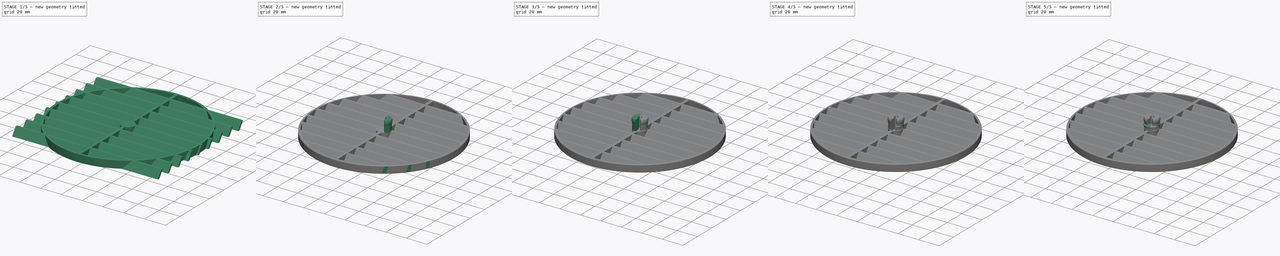
[diagram: build sequence overview — one tinted view per stage of 5, left to right]
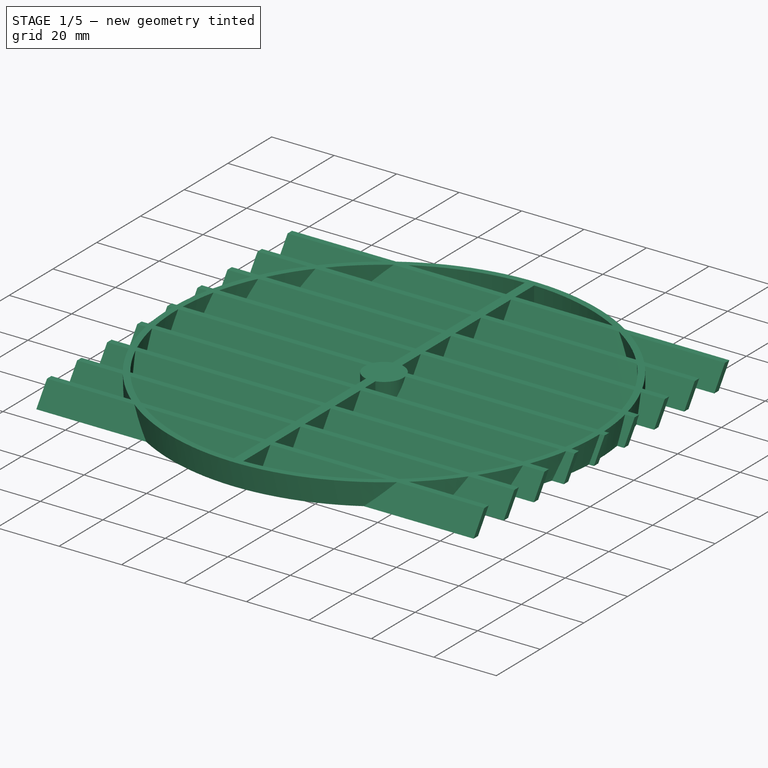
[diagram: stage 1 of 5 — iso view after this stage's code; geometry added in this stage tinted green]
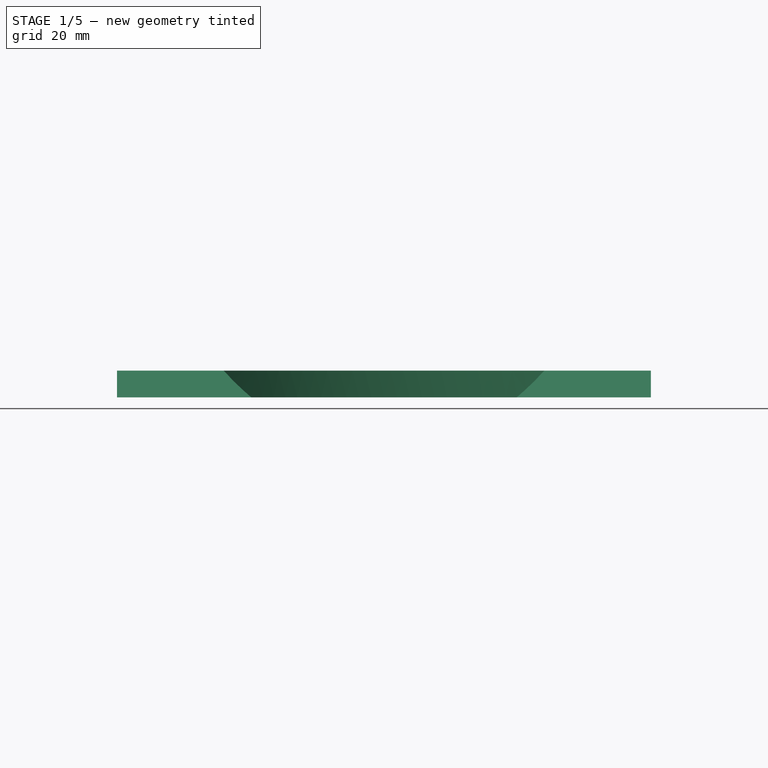
[diagram: stage 1 of 5 — front view after this stage's code; geometry added in this stage tinted green]
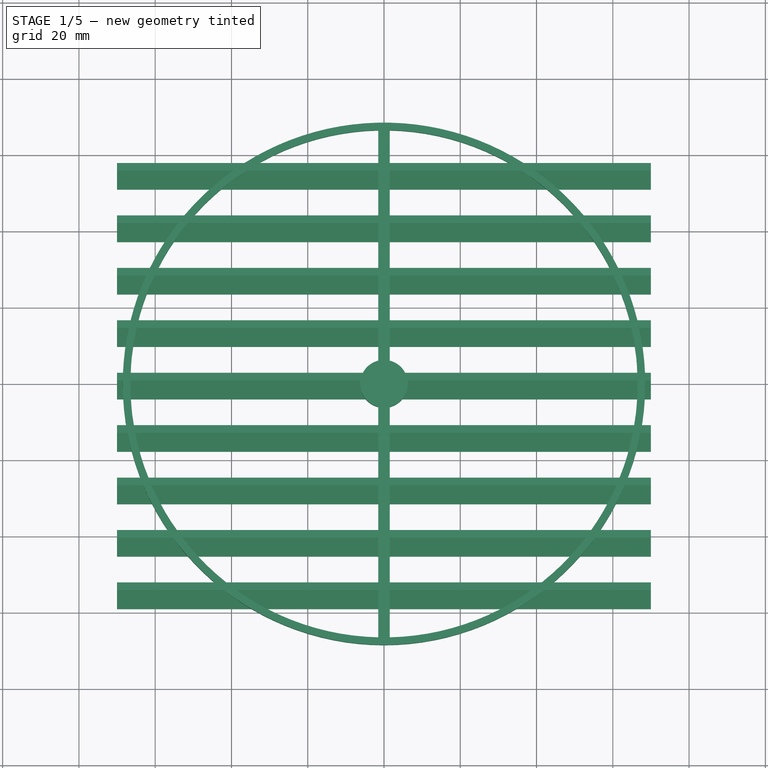
[diagram: stage 1 of 5 — top view after this stage's code; geometry added in this stage tinted green]
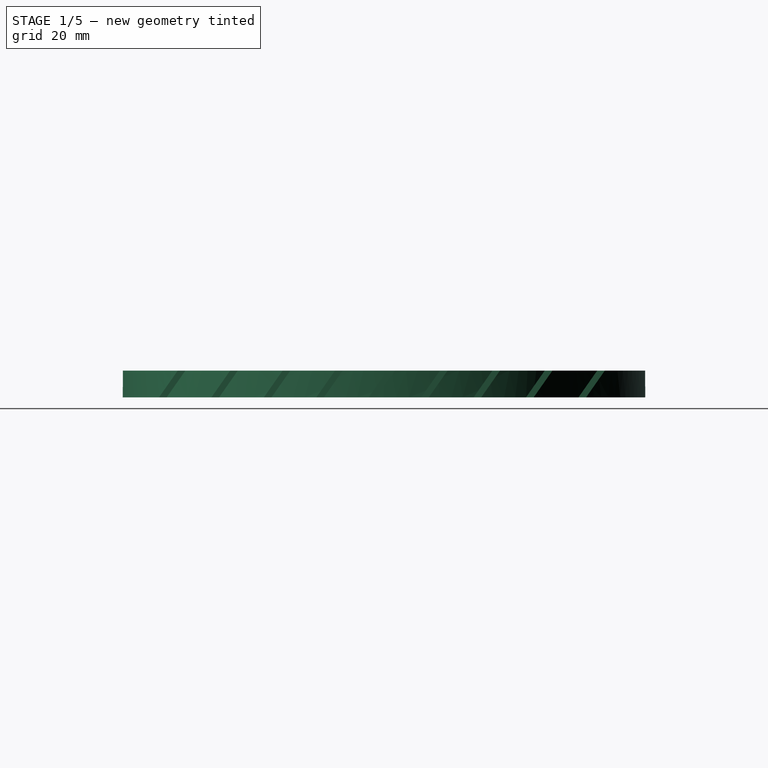
[diagram: stage 1 of 5 — right view after this stage's code; geometry added in this stage tinted green]
FCSTD DOCUMENT  (FreeCAD 0.20R29603 (Git))
Label: circular vent
License: All rights reserved
LicenseURL: http://en.wikipedia.org/wiki/All_rights_reserved
objects: Sketcher::SketchObject×11, PartDesign::Pad×5, PartDesign::Revolution×4, PartDesign::Body×4, PartDesign::PolarPattern×2, PartDesign::LinearPattern×1, PartDesign::Pocket×1, PartDesign::Mirrored×1, PartDesign::Chamfer×1, App::Part×1
note: 41 computed .brp shape members not serialized (recipe doc carries the construction recipe); baked Part::Feature solids carry a one-line shape summary decoded from their .brp

FEATURE [Sketcher::SketchObject] Sketch
  FullyConstrained = true
  MapMode = 5
  Support = -> [XY_Plane001]
  sketch-geometry (14):
    g0: LineSegment StartX=-68.5 StartY=-73.5 StartZ=0 EndX=68.5 EndY=-73.5 EndZ=0
    g1: LineSegment StartX=68.5 StartY=-73.5 StartZ=0 EndX=68.5 EndY=-75 EndZ=0
    g2: LineSegment StartX=68.5 StartY=-75 StartZ=0 EndX=-68.5 EndY=-75 EndZ=0
    g3: LineSegment StartX=-68.5 StartY=-75 StartZ=0 EndX=-68.5 EndY=-73.5 EndZ=0
    g4: Circle CenterX=0 CenterY=0 CenterZ=0 NormalX=0 NormalY=0 NormalZ=1 AngleXU=0 Radius=68.5
    g5: LineSegment StartX=1.5 StartY=66.5 StartZ=0 EndX=1.5 EndY=6.06733 EndZ=0
    g6: LineSegment StartX=-1.5 StartY=-66.5 StartZ=0 EndX=-1.5 EndY=-6.06733 EndZ=0
    g7: GeomPoint X=0 Y=68.5 Z=0
    g8: ArcOfCircle CenterX=0 CenterY=0 CenterZ=0 NormalX=0 NormalY=0 NormalZ=1 AngleXU=0 Radius=66.5169 StartAngle=1.59335 EndAngle=4.68984
    g9: ArcOfCircle CenterX=0 CenterY=0 CenterZ=0 NormalX=0 NormalY=0 NormalZ=1 AngleXU=0 Radius=66.5169 StartAngle=4.73494 EndAngle=7.83143
    g10: ArcOfCircle CenterX=0 CenterY=0 CenterZ=0 NormalX=0 NormalY=0 NormalZ=1 AngleXU=0 Radius=6.25 StartAngle=1.81316 EndAngle=4.47002
    g11: ArcOfCircle CenterX=0 CenterY=0 CenterZ=0 NormalX=0 NormalY=0 NormalZ=1 AngleXU=0 Radius=6.25 StartAngle=4.95475 EndAngle=7.61162
    g12: LineSegment StartX=-1.5 StartY=6.06733 StartZ=0 EndX=-1.5 EndY=66.5 EndZ=0
    g13: LineSegment StartX=1.5 StartY=-6.06733 StartZ=0 EndX=1.5 EndY=-66.5 EndZ=0
  constraints (39):
    c: Coincident(g0,g1)
    c: Coincident(g1,g2)
    c: Coincident(g2,g3)
    c: Coincident(g3,g0)
    c: Horizontal(g0)
    c: Vertical(g1)
    c: Vertical(g3)
    c: DistanceX(g2,g2) = 137
    c: DistanceY(g1,g1) = 1.5
    c: Symmetric(g2,g1,g-2)
    c: DistanceY(g1,g-1) = 75
    c: Coincident(g4,g-1)
    c: Diameter(g4) = 137
    c: Vertical(g5)
    c: PointOnObject(g7,g4)
    c: PointOnObject(g7,g-2)
    c: Symmetric(g6,g5,g4)
    c: DistanceX(g12,g5) = 3
    c: Horizontal(g12,g5)
    c: Horizontal(g6,g13)
    c: DistanceY(g5,g7) = 2
    c: Coincident(g8,g4)
    c: Coincident(g8,g6)
    c: PointOnObject(g8,g6)
    c: Coincident(g9,g4)
    c: PointOnObject(g9,g5)
    c: Coincident(g9,g13)
    c: Coincident(g10,g4)
    c: Diameter(g10) = 12.5
    c: Coincident(g10,g11)
    c: Coincident(g6,g10)
    c: Coincident(g12,g10)
    c: Coincident(g5,g11)
    c: Coincident(g13,g11)
    c: DistanceX(g6,g11) = 3
    c: Symmetric(g6,g5,g4)
    c: Vertical(g12)
    c: Vertical(g13)
    c: PointOnObject(g8,g12)
FEATURE [PartDesign::Pad] Pad
  Direction = (0,0,1)
  Length = 7
  Length2 = 10
  Profile = -> Sketch
  ReferenceAxis = -> Sketch [N_Axis]
  Type = 0
FEATURE [Sketcher::SketchObject] Sketch001
  AttachmentOffset = pos=(0,-2,0) rot=(0,0,1;0rad)
  FullyConstrained = true
  MapMode = 5
  Placement = pos=(0,-2,0) rot=(0,0,1;0rad)
  Support = -> [XY_Plane001]
  sketch-geometry (4):
    g0: LineSegment StartX=-70 StartY=-55 StartZ=0 EndX=70 EndY=-55 EndZ=0
    g1: LineSegment StartX=70 StartY=-55 StartZ=0 EndX=70 EndY=-57 EndZ=0
    g2: LineSegment StartX=70 StartY=-57 StartZ=0 EndX=-70 EndY=-57 EndZ=0
    g3: LineSegment StartX=-70 StartY=-57 StartZ=0 EndX=-70 EndY=-55 EndZ=0
  constraints (11):
    c: Coincident(g0,g1)
    c: Coincident(g1,g2)
    c: Coincident(g2,g3)
    c: Coincident(g3,g0)
    c: Horizontal(g0)
    c: Vertical(g1)
    c: Vertical(g3)
    c: DistanceY(g1,g1) = 2
    c: DistanceX(g2,g2) = 140
    c: Symmetric(g2,g1,g-2)
    c: DistanceY(g0,g-1) = 55
FEATURE [PartDesign::Pad] Pad001
  BaseFeature = -> Pad
  Direction = (0,0.7,1)
  Length = 7
  Length2 = 10
  Profile = -> Sketch001
  ReferenceAxis = -> Sketch001 [N_Axis]
  Type = 0
  UseCustomVector = true
FEATURE [PartDesign::LinearPattern] LinearPattern
  BaseFeature = -> Pad001
  Direction = -> Sketch001 [V_Axis]
  Length = 110
  Occurrences = 9
  Originals = -> [Pad001]
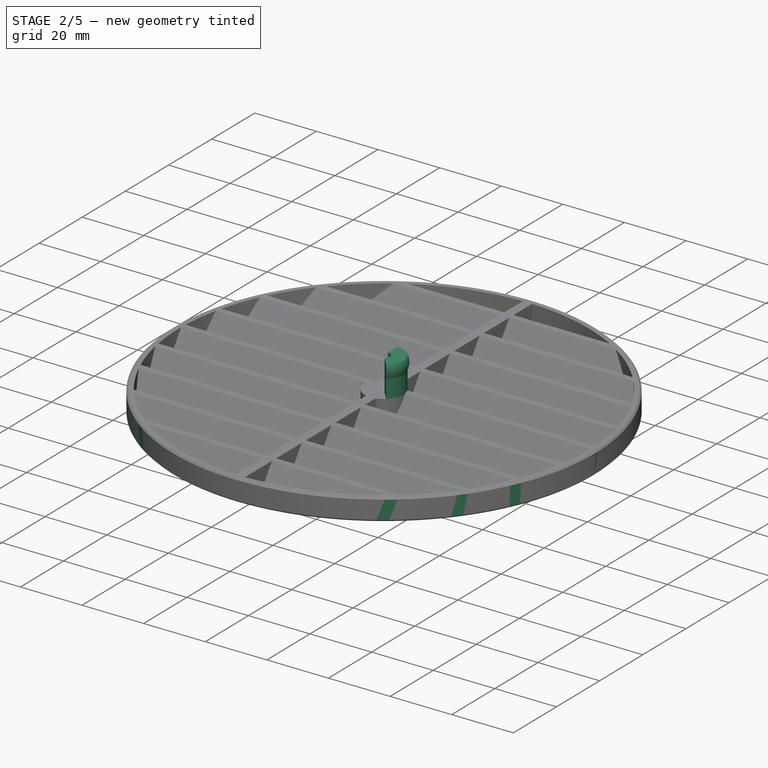
[diagram: stage 2 of 5 — iso view after this stage's code; geometry added in this stage tinted green]
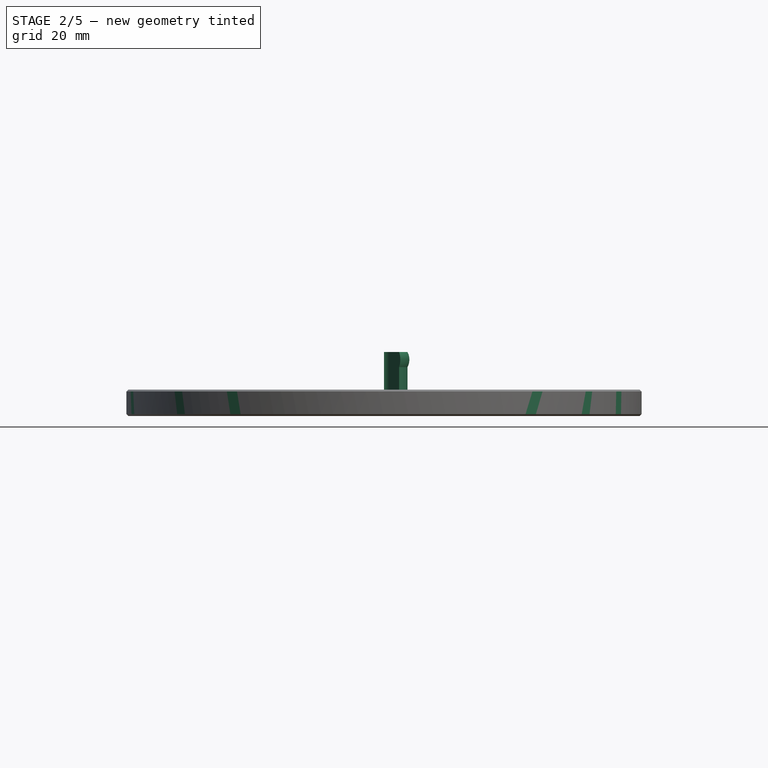
[diagram: stage 2 of 5 — front view after this stage's code; geometry added in this stage tinted green]
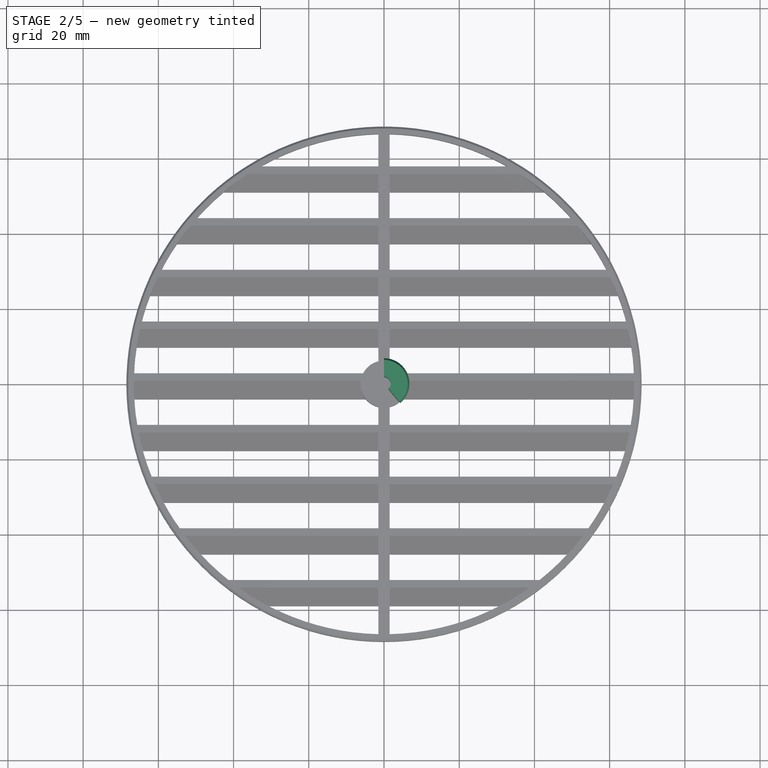
[diagram: stage 2 of 5 — top view after this stage's code; geometry added in this stage tinted green]
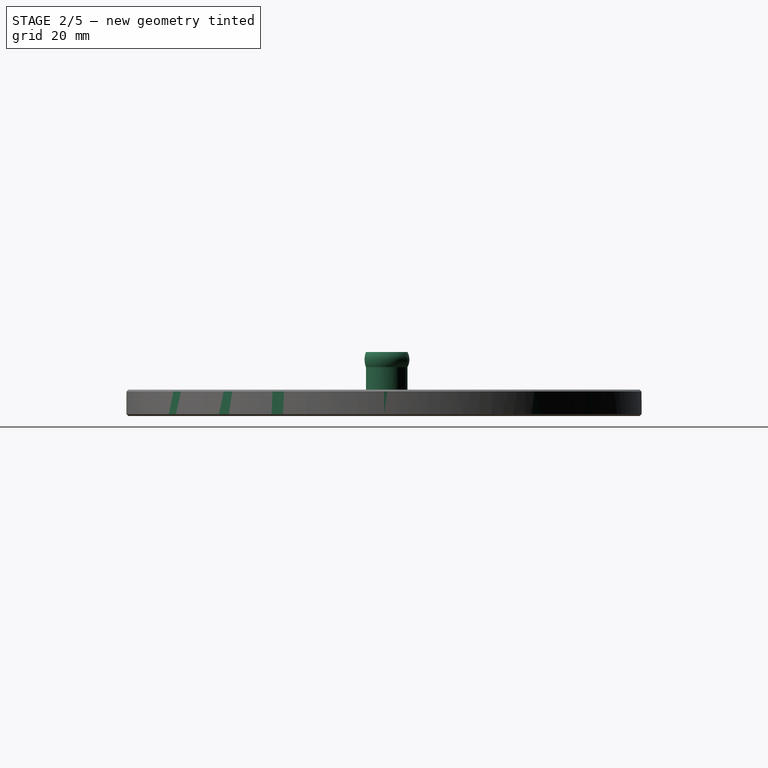
[diagram: stage 2 of 5 — right view after this stage's code; geometry added in this stage tinted green]
FEATURE [Sketcher::SketchObject] Sketch002
  ExternalGeometry = -> [LinearPattern]
  FullyConstrained = true
  MapMode = 5
  Support = -> [XY_Plane001]
  sketch-geometry (5):
    g0: Circle CenterX=0 CenterY=0 CenterZ=0 NormalX=0 NormalY=0 NormalZ=1 AngleXU=0 Radius=68.5
    g1: LineSegment StartX=-80 StartY=80 StartZ=0 EndX=80 EndY=80 EndZ=0
    g2: LineSegment StartX=80 StartY=80 StartZ=0 EndX=80 EndY=-80 EndZ=0
    g3: LineSegment StartX=80 StartY=-80 StartZ=0 EndX=-80 EndY=-80 EndZ=0
    g4: LineSegment StartX=-80 StartY=-80 StartZ=0 EndX=-80 EndY=80 EndZ=0
  constraints (13):
    c: Coincident(g0,g-1)
    c: PointOnObject(g-3,g0)
    c: Coincident(g1,g2)
    c: Coincident(g2,g3)
    c: Coincident(g3,g4)
    c: Coincident(g4,g1)
    c: Horizontal(g1)
    c: Horizontal(g3)
    c: Vertical(g2)
    c: Vertical(g4)
    c: Symmetric(g3,g1,g0)
    c: Equal(g1,g4)
    c: DistanceX(g1,g1) = 160
FEATURE [PartDesign::Pocket] Pocket
  BaseFeature = -> LinearPattern
  Direction = (0,0,-1)
  Length = 5
  Length2 = 5
  Profile = -> Sketch002
  ReferenceAxis = -> Sketch002 [N_Axis]
  Refine = true
  Reversed = true
  Type = 1
FEATURE [PartDesign::Body] Body001
  Group = -> [Sketch007,Sketch008,Pad002,Revolution001,Mirrored001]
  Origin = -> Origin002
  Tip = -> Mirrored001
FEATURE [PartDesign::Chamfer] Chamfer
  Angle = 45
  Base = -> Pocket [Edge19,Edge308]
  BaseFeature = -> Pocket
  ChamferType = 0
  FlipDirection = false
  Size = 0.5
  Size2 = 1
  SupportTransform = false
  UseAllEdges = false
FEATURE [PartDesign::Body] Body003  label="holding nub"
  Group = -> [Sketch016,Pad004,Sketch017,Sketch018,Revolution003,PolarPattern001]
  Origin = -> Origin004
  Tip = -> PolarPattern001
FEATURE [Sketcher::SketchObject] Sketch019  label="holding nub sketch"
  FullyConstrained = true
  MapMode = 5
  Placement = pos=(0,0,0) rot=(0.57735,0.57735,0.57735;2.0944rad)
  Support = -> [YZ_Plane001]
  sketch-geometry (7):
    g0: LineSegment StartX=1.8 StartY=0 StartZ=0 EndX=1.8 EndY=17 EndZ=0
    g1: LineSegment StartX=1.8 StartY=17 StartZ=0 EndX=6.25 EndY=17 EndZ=0
    g2: LineSegment StartX=6.25 StartY=13 StartZ=0 EndX=6.25 EndY=0 EndZ=0
    g3: LineSegment StartX=6.25 StartY=0 StartZ=0 EndX=1.8 EndY=0 EndZ=0
    g4: GeomPoint X=6.25 Y=15 Z=0
    g5: ArcOfCircle CenterX=2.5 CenterY=15 CenterZ=0 NormalX=0 NormalY=0 NormalZ=1 AngleXU=0 Radius=4.25 StartAngle=5.79323 EndAngle=6.77314
    g6: GeomPoint X=6.75 Y=15 Z=0
  constraints (19):
    c: Vertical(g0)
    c: Coincident(g0,g1)
    c: Horizontal(g1)
    c: Coincident(g2,g3)
    c: Coincident(g3,g0)
    c: Horizontal(g3)
    c: Vertical(g2)
    c: DistanceX(g-1,g2) = 6.25
    c: DistanceX(g-1,g0) = 1.8
    c: Vertical(g1,g2)
    c: DistanceY(g0,g0) = 17
    c: DistanceY(g2,g1) = 4
    c: PointOnObject(g2,g-1)
    c: Symmetric(g2,g1,g4)
    c: Coincident(g5,g1)
    c: Coincident(g5,g2)
    c: PointOnObject(g6,g5)
    c: Horizontal(g6,g4)
    c: DistanceX(g4,g6) = 0.5
FEATURE [PartDesign::Revolution] Revolution
  Angle = 140
  Axis = (-2e-16,3e-16,1)
  Base = (0,0,0)
  BaseFeature = -> Chamfer
  Profile = -> Sketch019
  ReferenceAxis = -> Sketch019 [V_Axis]
  Reversed = true
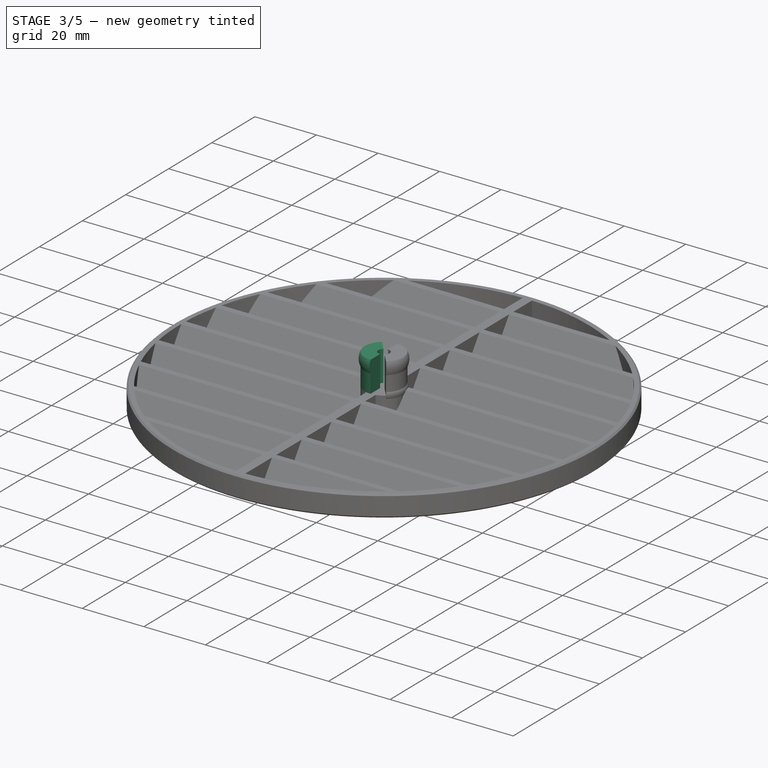
[diagram: stage 3 of 5 — iso view after this stage's code; geometry added in this stage tinted green]
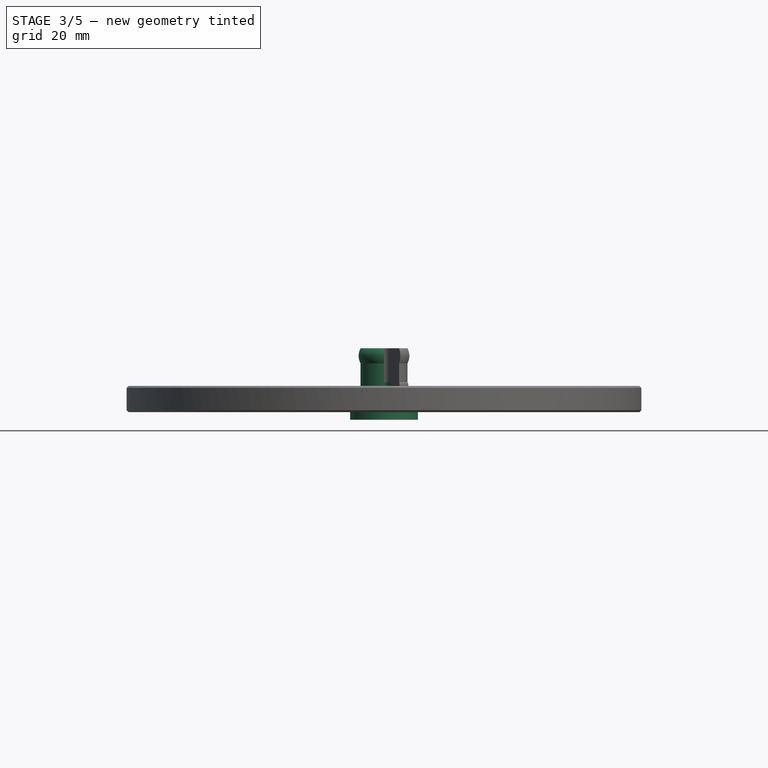
[diagram: stage 3 of 5 — front view after this stage's code; geometry added in this stage tinted green]
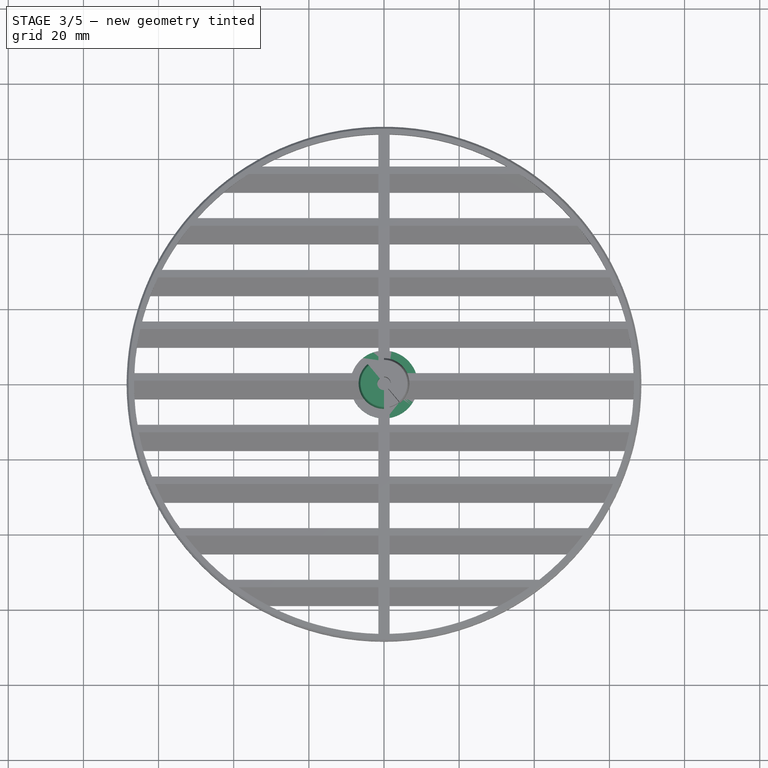
[diagram: stage 3 of 5 — top view after this stage's code; geometry added in this stage tinted green]
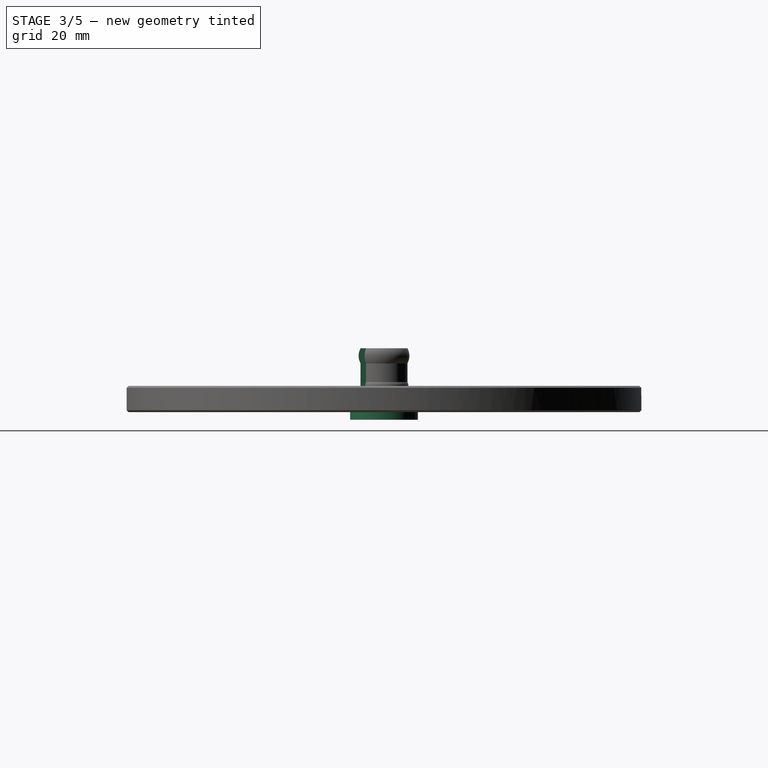
[diagram: stage 3 of 5 — right view after this stage's code; geometry added in this stage tinted green]
FEATURE [PartDesign::Body] Body002
  Group = -> [Sketch009,Sketch010,Pad003,Revolution002]
  Origin = -> Origin003
  Tip = -> Revolution002
FEATURE [Sketcher::SketchObject] Sketch016
  FullyConstrained = false
  MapMode = 5
  Support = -> [XY_Plane004]
  sketch-geometry (1):
    g0: Circle CenterX=0 CenterY=0 CenterZ=0 NormalX=0 NormalY=0 NormalZ=1 AngleXU=0 Radius=9.01607
  constraints (1):
    c: Coincident(g0,g-1)
FEATURE [PartDesign::Pad] Pad004
  Direction = (0,0,1)
  Length = 2
  Length2 = 10
  Profile = -> Sketch016
  ReferenceAxis = -> Sketch016 [N_Axis]
  Reversed = true
  Type = 0
FEATURE [Sketcher::SketchObject] Sketch017
  FullyConstrained = true
  MapMode = 5
  Support = -> [XY_Plane004]
  sketch-geometry (2):
    g0: Circle CenterX=0 CenterY=0 CenterZ=0 NormalX=0 NormalY=0 NormalZ=1 AngleXU=0 Radius=6.25
    g1: Circle CenterX=0 CenterY=0 CenterZ=0 NormalX=0 NormalY=0 NormalZ=1 AngleXU=0 Radius=1.25
  constraints (4):
    c: Coincident(g0,g-1)
    c: Diameter(g0) = 12.5
    c: Coincident(g1,g0)
    c: Diameter(g1) = 2.5
FEATURE [Sketcher::SketchObject] Sketch018
  FullyConstrained = true
  MapMode = 5
  Placement = pos=(0,0,0) rot=(0.57735,0.57735,0.57735;2.0944rad)
  Support = -> [YZ_Plane004]
  sketch-geometry (7):
    g0: LineSegment StartX=1.8 StartY=0 StartZ=0 EndX=1.8 EndY=8 EndZ=0
    g1: LineSegment StartX=1.8 StartY=8 StartZ=0 EndX=6.25 EndY=8 EndZ=0
    g2: LineSegment StartX=6.25 StartY=6 StartZ=0 EndX=6.25 EndY=0 EndZ=0
    g3: LineSegment StartX=6.25 StartY=0 StartZ=0 EndX=1.8 EndY=0 EndZ=0
    g4: GeomPoint X=6.25 Y=7 Z=0
    g5: ArcOfCircle CenterX=4.375 CenterY=7 CenterZ=0 NormalX=0 NormalY=0 NormalZ=1 AngleXU=0 Radius=2.125 StartAngle=5.79323 EndAngle=6.77314
    g6: GeomPoint X=6.5 Y=7 Z=0
  constraints (19):
    c: Vertical(g0)
    c: Coincident(g0,g1)
    c: Horizontal(g1)
    c: Coincident(g2,g3)
    c: Coincident(g3,g0)
    c: Horizontal(g3)
    c: Vertical(g2)
    c: DistanceX(g-1,g2) = 6.25
    c: DistanceX(g-1,g0) = 1.8
    c: Vertical(g1,g2)
    c: DistanceY(g0,g0) = 8
    c: DistanceY(g2,g1) = 2
    c: PointOnObject(g2,g-1)
    c: Symmetric(g2,g1,g4)
    c: Coincident(g5,g1)
    c: Coincident(g5,g2)
    c: PointOnObject(g6,g5)
    c: Horizontal(g6,g4)
    c: DistanceX(g4,g6) = 0.25
FEATURE [PartDesign::Revolution] Revolution003
  Angle = 140
  Axis = (-2e-16,3e-16,1)
  Base = (0,0,0)
  BaseFeature = -> Pad004
  Profile = -> Sketch018
  ReferenceAxis = -> Sketch018 [V_Axis]
  Reversed = true
FEATURE [PartDesign::PolarPattern] PolarPattern
  Angle = 360
  Axis = -> Z_Axis001
  BaseFeature = -> Revolution
  Occurrences = 2
  Originals = -> [Revolution]
FEATURE [PartDesign::Body] Body  label="circular vent"
  Group = -> [Sketch,Pad,Sketch001,Pad001,LinearPattern,Sketch002,Pocket,Chamfer,Sketch019,Revolution,PolarPattern]
  Origin = -> Origin001
  Tip = -> PolarPattern
FEATURE [App::Part] Part
  Group = -> [Body]
  Origin = -> Origin
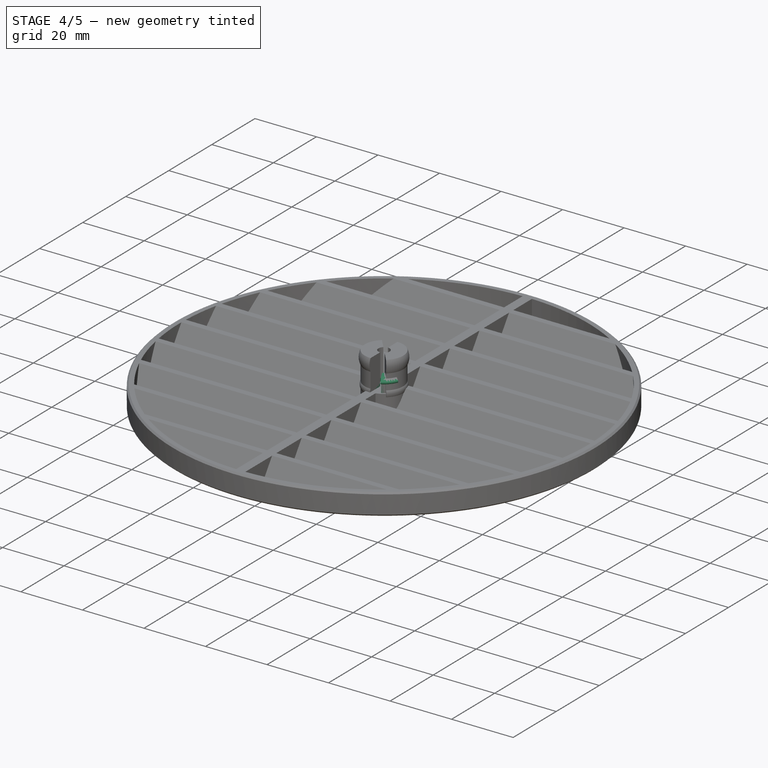
[diagram: stage 4 of 5 — iso view after this stage's code; geometry added in this stage tinted green]
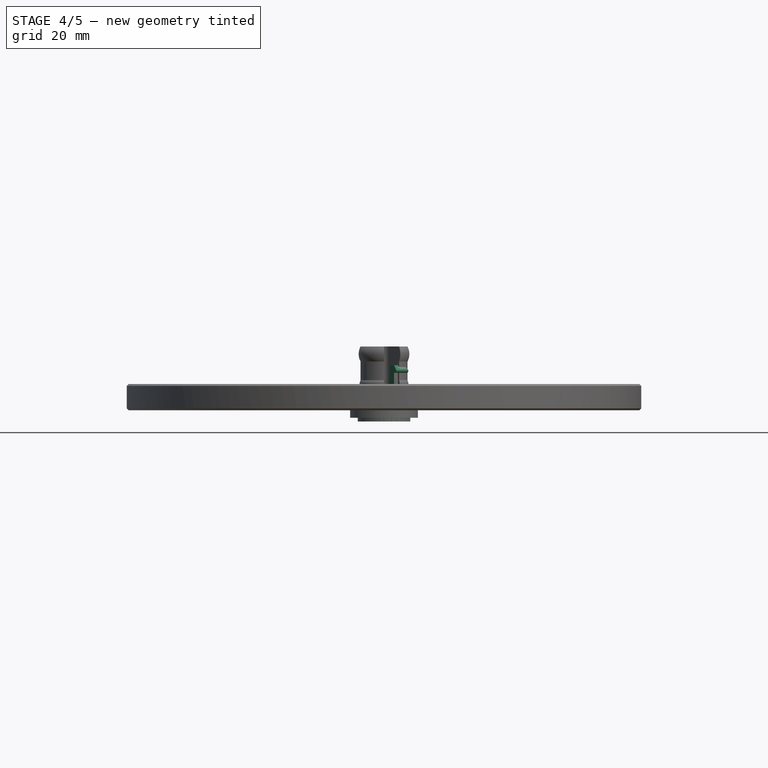
[diagram: stage 4 of 5 — front view after this stage's code; geometry added in this stage tinted green]
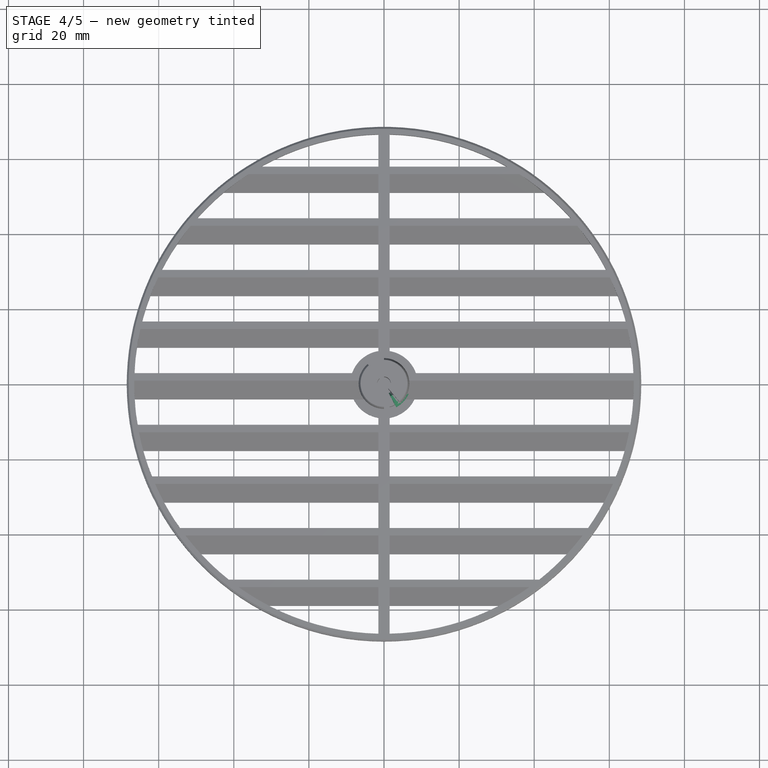
[diagram: stage 4 of 5 — top view after this stage's code; geometry added in this stage tinted green]
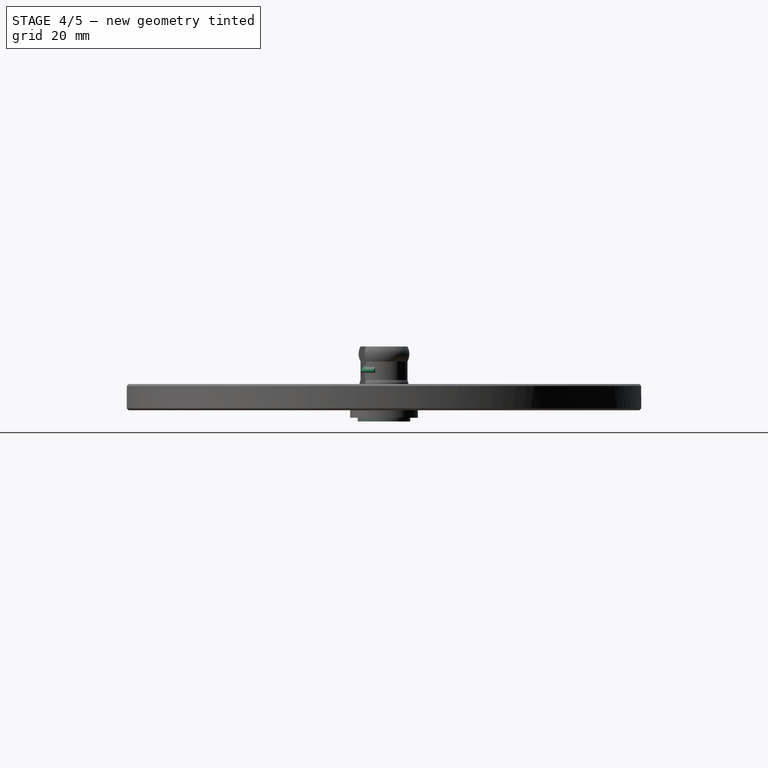
[diagram: stage 4 of 5 — right view after this stage's code; geometry added in this stage tinted green]
FEATURE [Sketcher::SketchObject] Sketch009
  AttachmentOffset = pos=(0,0,0) rot=(0,1,0;-0.392699rad)
  FullyConstrained = true
  MapMode = 5
  Placement = pos=(0,0,0) rot=(-0.962637,0.19148,0.19148;4.67432rad)
  Support = -> [XZ_Plane003]
  sketch-geometry (9):
    g0: LineSegment StartX=5.75 StartY=0 StartZ=0 EndX=5.75 EndY=10 EndZ=0
    g1: LineSegment StartX=5.75 StartY=10 StartZ=0 EndX=6.54289 EndY=10 EndZ=0
    g2: LineSegment StartX=6.89645 StartY=10.8536 StartZ=0 EndX=5.75 EndY=12 EndZ=0
    g3: LineSegment StartX=5.75 StartY=12 StartZ=0 EndX=3.75 EndY=12 EndZ=0
    g4: LineSegment StartX=5.75 StartY=0 StartZ=0 EndX=0 EndY=0 EndZ=0
    g5: LineSegment StartX=0 StartY=0 StartZ=0 EndX=-3.6e-15 EndY=3 EndZ=0
    g6: ArcOfCircle CenterX=-8.925 CenterY=12 CenterZ=0 NormalX=0 NormalY=0 NormalZ=1 AngleXU=0 Radius=12.675 StartAngle=5.4936 EndAngle=6.28319
    g7: ArcOfCircle CenterX=6.54289 CenterY=10.5 CenterZ=0 NormalX=0 NormalY=0 NormalZ=1 AngleXU=0 Radius=0.5 StartAngle=4.71239 EndAngle=7.06858
    g8: GeomPoint X=7.75 Y=10 Z=0
  constraints (25):
    c: Vertical(g0)
    c: Coincident(g0,g1)
    c: Horizontal(g1)
    c: Coincident(g2,g3)
    c: DistanceX(g3,g3) = 2
    c: Horizontal(g3)
    c: Angle(g3,g2) = 2.35619
    c: DistanceX(g1,g8) = 2
    c: DistanceX(g-1,g0) = 5.75
    c: PointOnObject(g0,g-1)
    c: Coincident(g0,g4)
    c: Coincident(g4,g-1)
    c: Coincident(g4,g5)
    c: PointOnObject(g5,g-2)
    c: Coincident(g6,g5)
    c: Coincident(g6,g3)
    c: DistanceY(g4,g2) = 12
    c: Perpendicular(g6,g3)
    c: Vertical(g0,g2)
    c: DistanceY(g5,g5) = 3
    c: PointOnObject(g8,g1)
    c: PointOnObject(g8,g2)
    c: Tangent(g1,g7) = -1.5708
    c: Tangent(g2,g7) = -1.5708
    c: Radius(g7) = 0.5
FEATURE [Sketcher::SketchObject] Sketch010
  FullyConstrained = true
  MapMode = 5
  Support = -> [XY_Plane003]
  sketch-geometry (1):
    g0: Circle CenterX=0 CenterY=0 CenterZ=0 NormalX=0 NormalY=0 NormalZ=1 AngleXU=0 Radius=7
  constraints (2):
    c: Coincident(g0,g-1)
    c: Diameter(g0) = 14
FEATURE [PartDesign::Pad] Pad003
  Direction = (0,0,1)
  Length = 3
  Length2 = 10
  Profile = -> Sketch010
  ReferenceAxis = -> Sketch010 [N_Axis]
  Reversed = true
  Type = 0
FEATURE [PartDesign::Revolution] Revolution002
  Angle = 40
  Axis = (0,-2e-16,1)
  Base = (0,0,0)
  BaseFeature = -> Pad003
  Profile = -> Sketch009
  ReferenceAxis = -> Sketch009 [V_Axis]
  Reversed = true
FEATURE [PartDesign::PolarPattern] PolarPattern001
  Angle = 360
  Axis = -> Z_Axis004
  BaseFeature = -> Revolution003
  Occurrences = 2
  Originals = -> [Revolution003]
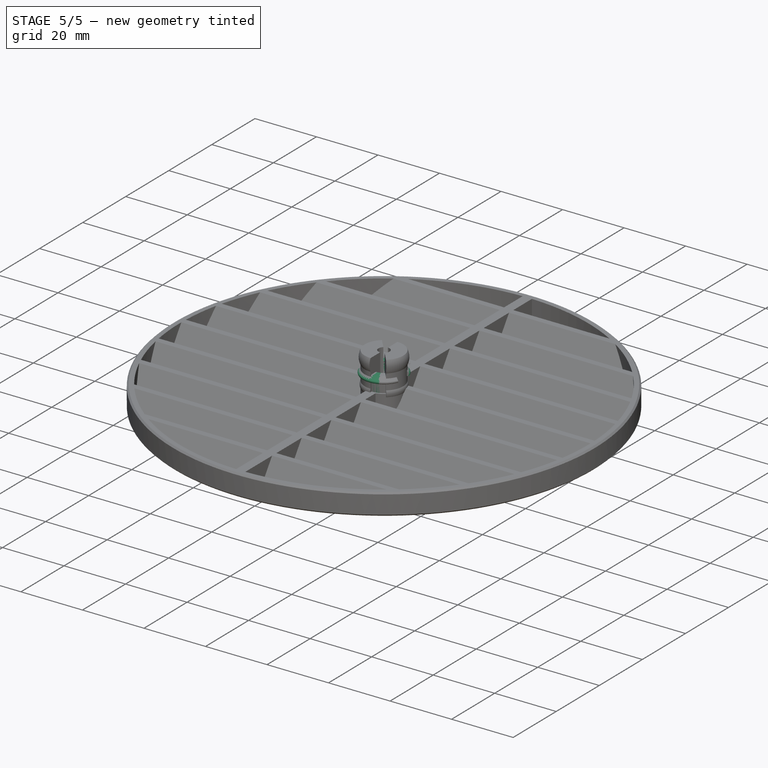
[diagram: stage 5 of 5 — iso view after this stage's code; geometry added in this stage tinted green]
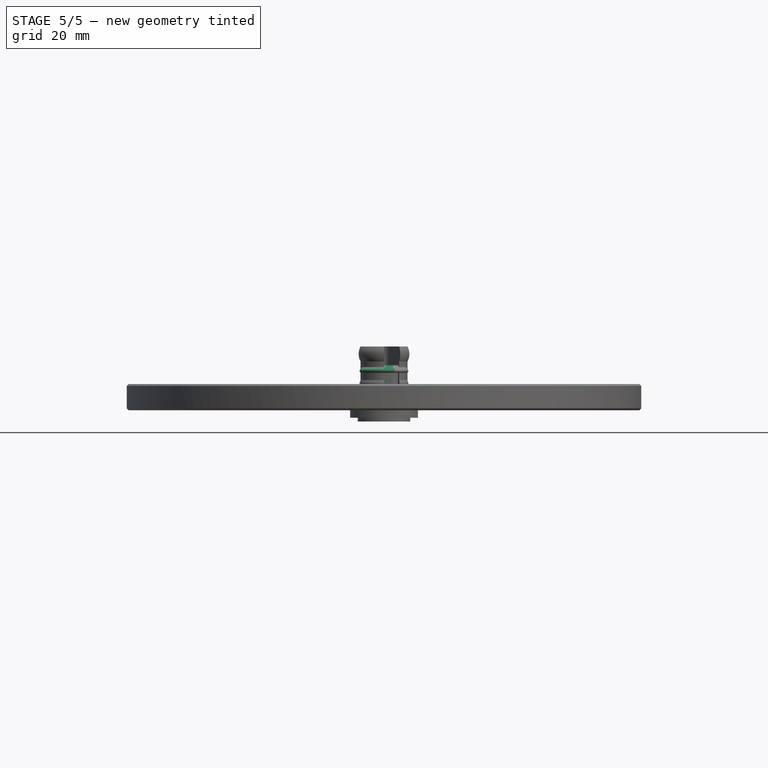
[diagram: stage 5 of 5 — front view after this stage's code; geometry added in this stage tinted green]
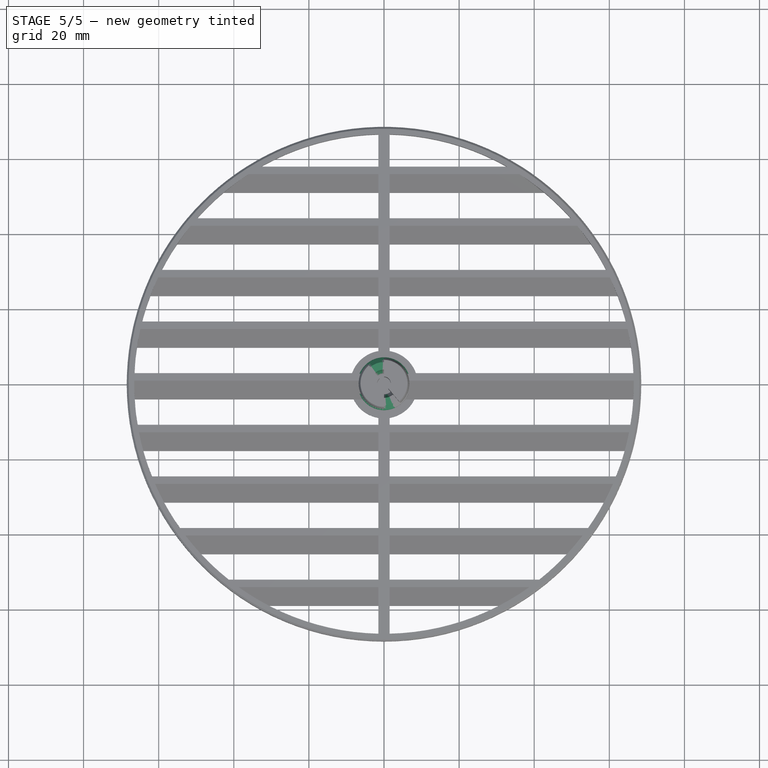
[diagram: stage 5 of 5 — top view after this stage's code; geometry added in this stage tinted green]
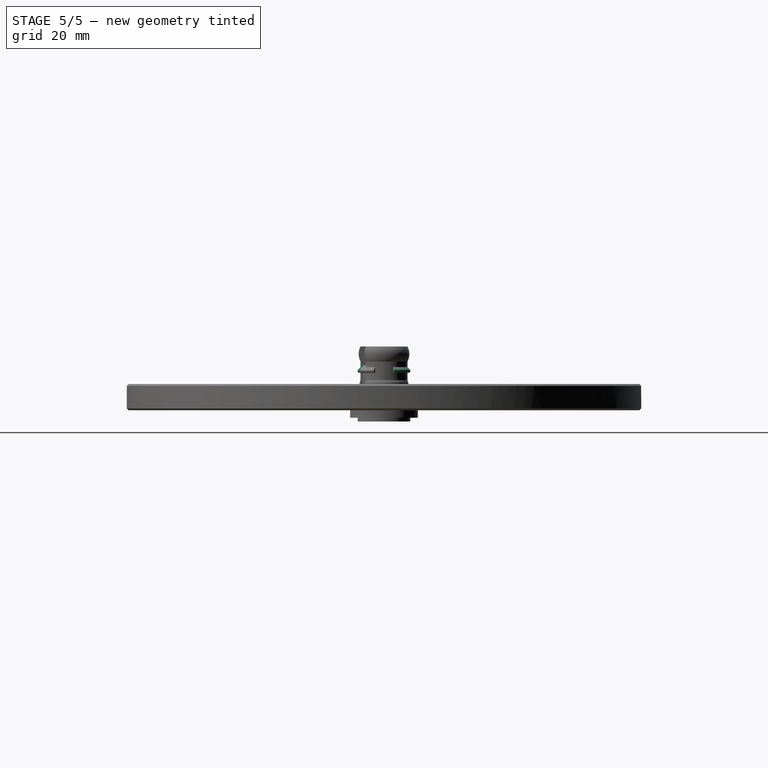
[diagram: stage 5 of 5 — right view after this stage's code; geometry added in this stage tinted green]
FEATURE [Sketcher::SketchObject] Sketch007
  AttachmentOffset = pos=(0,0,0) rot=(0,1,0;-0.392699rad)
  FullyConstrained = true
  MapMode = 5
  Placement = pos=(0,0,0) rot=(-0.962637,0.19148,0.19148;4.67432rad)
  Support = -> [XZ_Plane002]
  sketch-geometry (9):
    g0: LineSegment StartX=5.75 StartY=0 StartZ=0 EndX=5.75 EndY=10 EndZ=0
    g1: LineSegment StartX=5.75 StartY=10 StartZ=0 EndX=6.54289 EndY=10 EndZ=0
    g2: LineSegment StartX=6.89645 StartY=10.8536 StartZ=0 EndX=5.75 EndY=12 EndZ=0
    g3: LineSegment StartX=5.75 StartY=12 StartZ=0 EndX=3.75 EndY=12 EndZ=0
    g4: LineSegment StartX=5.75 StartY=0 StartZ=0 EndX=0 EndY=0 EndZ=0
    g5: LineSegment StartX=0 StartY=0 StartZ=0 EndX=-3.6e-15 EndY=3 EndZ=0
    g6: ArcOfCircle CenterX=-8.925 CenterY=12 CenterZ=0 NormalX=0 NormalY=0 NormalZ=1 AngleXU=0 Radius=12.675 StartAngle=5.4936 EndAngle=6.28319
    g7: ArcOfCircle CenterX=6.54289 CenterY=10.5 CenterZ=0 NormalX=0 NormalY=0 NormalZ=1 AngleXU=0 Radius=0.5 StartAngle=4.71239 EndAngle=7.06858
    g8: GeomPoint X=7.75 Y=10 Z=0
  constraints (25):
    c: Vertical(g0)
    c: Coincident(g0,g1)
    c: Horizontal(g1)
    c: Coincident(g2,g3)
    c: DistanceX(g3,g3) = 2
    c: Horizontal(g3)
    c: Angle(g3,g2) = 2.35619
    c: DistanceX(g1,g8) = 2
    c: DistanceX(g-1,g0) = 5.75
    c: PointOnObject(g0,g-1)
    c: Coincident(g0,g4)
    c: Coincident(g4,g-1)
    c: Coincident(g4,g5)
    c: PointOnObject(g5,g-2)
    c: Coincident(g6,g5)
    c: Coincident(g6,g3)
    c: DistanceY(g4,g2) = 12
    c: Perpendicular(g6,g3)
    c: Vertical(g0,g2)
    c: DistanceY(g5,g5) = 3
    c: PointOnObject(g8,g1)
    c: PointOnObject(g8,g2)
    c: Tangent(g1,g7) = -1.5708
    c: Tangent(g2,g7) = -1.5708
    c: Radius(g7) = 0.5
FEATURE [Sketcher::SketchObject] Sketch008
  FullyConstrained = true
  MapMode = 5
  Support = -> [XY_Plane002]
  sketch-geometry (1):
    g0: Circle CenterX=0 CenterY=0 CenterZ=0 NormalX=0 NormalY=0 NormalZ=1 AngleXU=0 Radius=7
  constraints (2):
    c: Coincident(g0,g-1)
    c: Diameter(g0) = 14
FEATURE [PartDesign::Pad] Pad002
  Direction = (0,0,1)
  Length = 3
  Length2 = 10
  Profile = -> Sketch008
  ReferenceAxis = -> Sketch008 [N_Axis]
  Reversed = true
  Type = 0
FEATURE [PartDesign::Revolution] Revolution001
  Angle = 135
  Axis = (0,-2e-16,1)
  Base = (0,0,0)
  BaseFeature = -> Pad002
  Profile = -> Sketch007
  ReferenceAxis = -> Sketch007 [V_Axis]
  Reversed = true
FEATURE [PartDesign::Mirrored] Mirrored001
  BaseFeature = -> Revolution001
  MirrorPlane = -> XZ_Plane002
  Originals = -> [Revolution001]
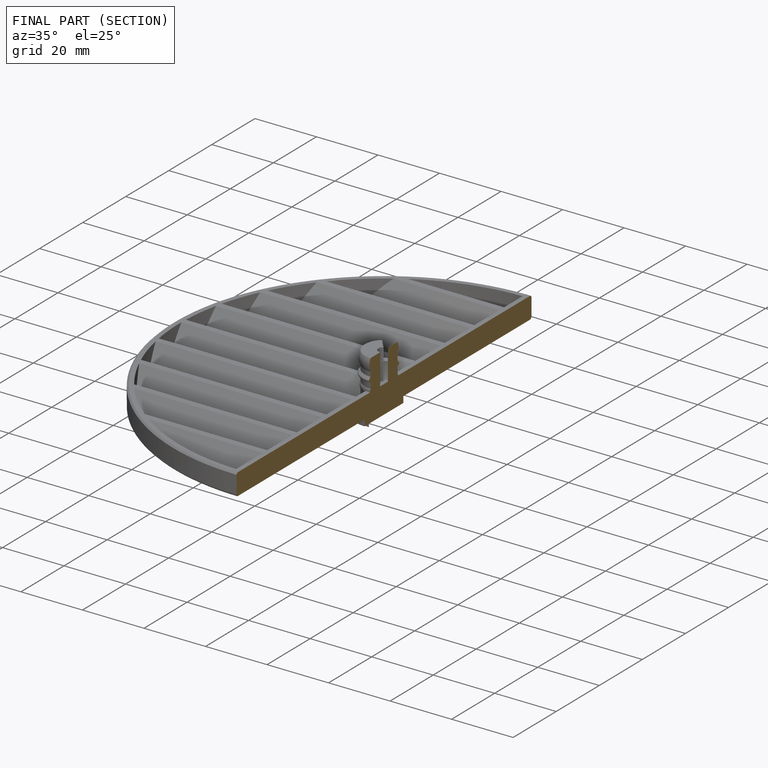
[diagram: finished part — half-section view (interior)]
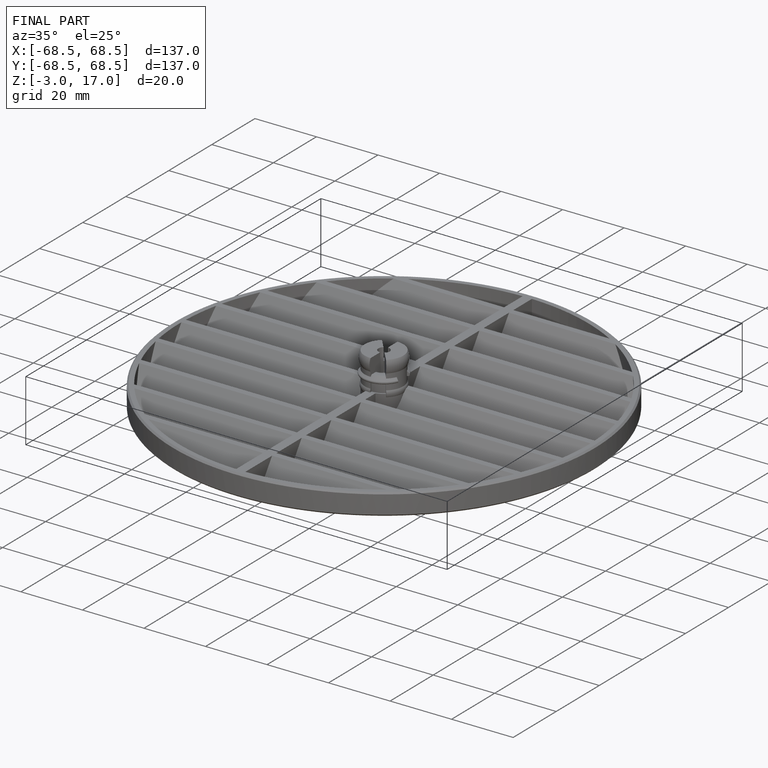
[diagram: finished part — iso view with bounding-box wireframe]
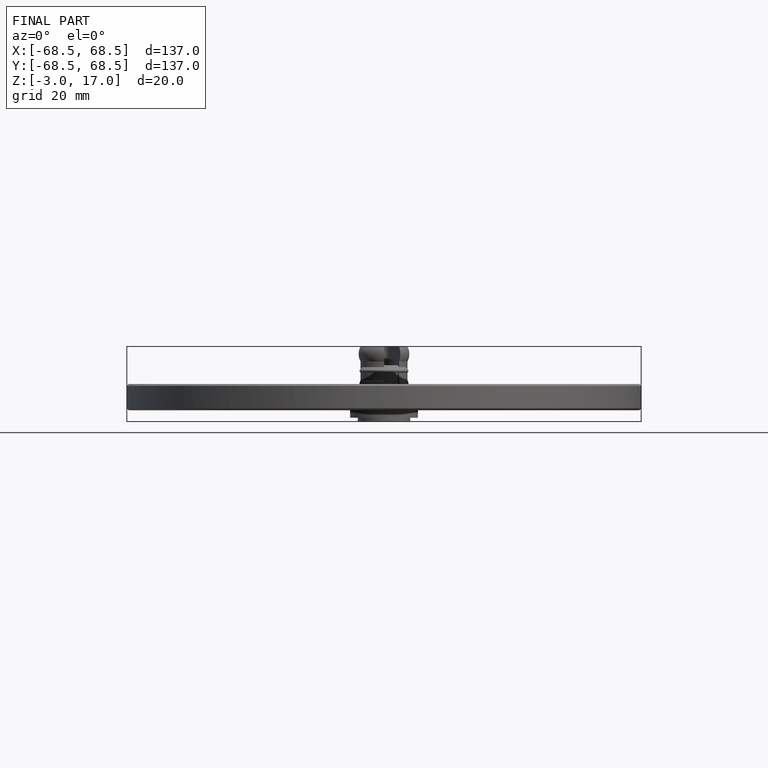
[diagram: finished part — front view with bounding-box wireframe]
